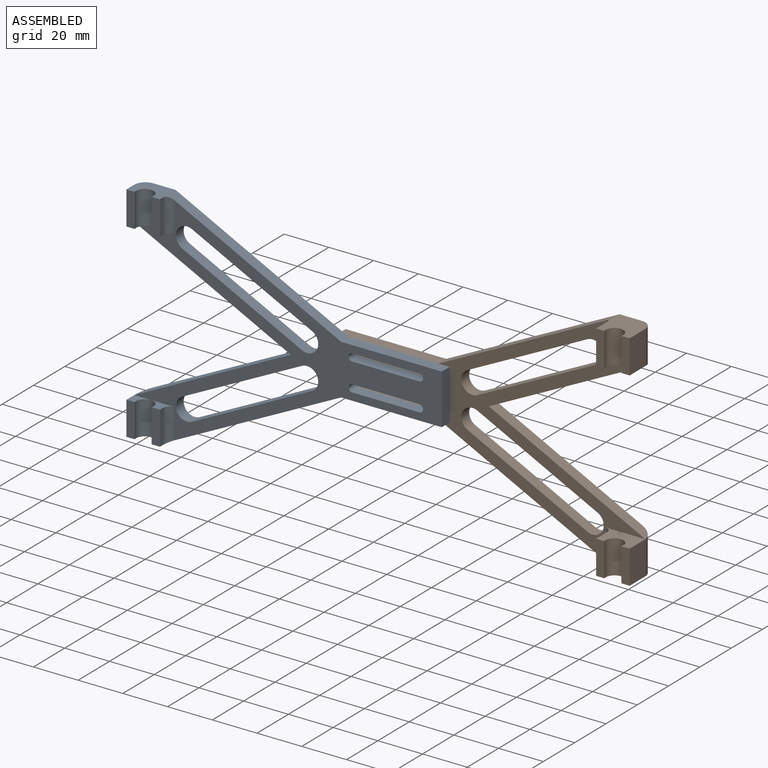
[diagram: assembled view]
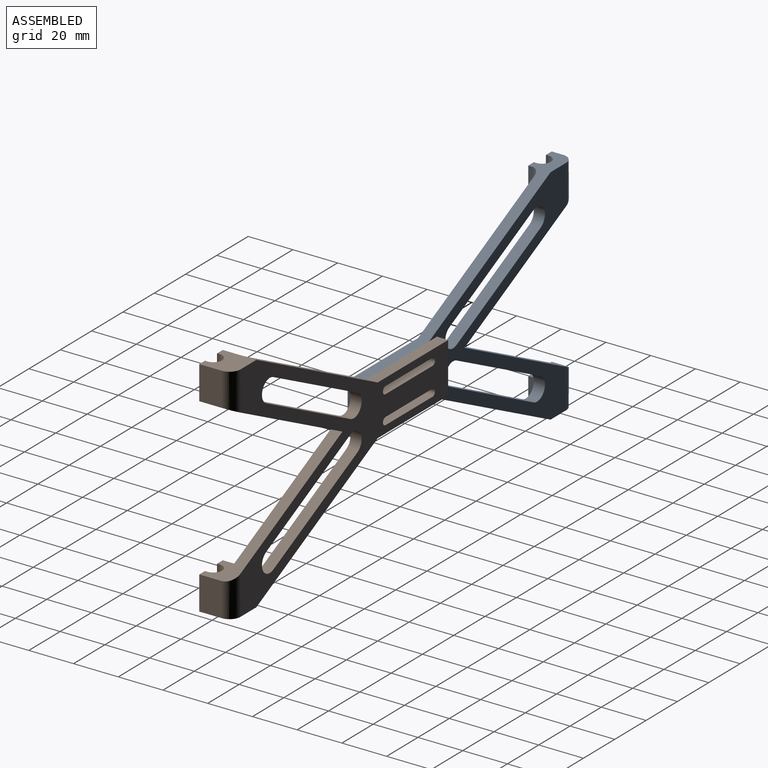
[diagram: assembled view, second angle]
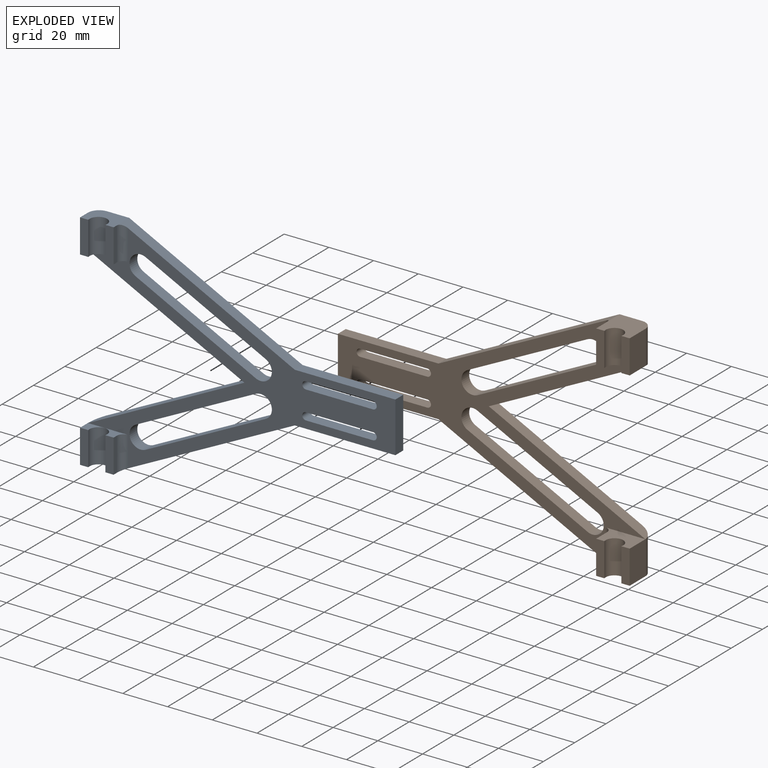
[diagram: exploded view]
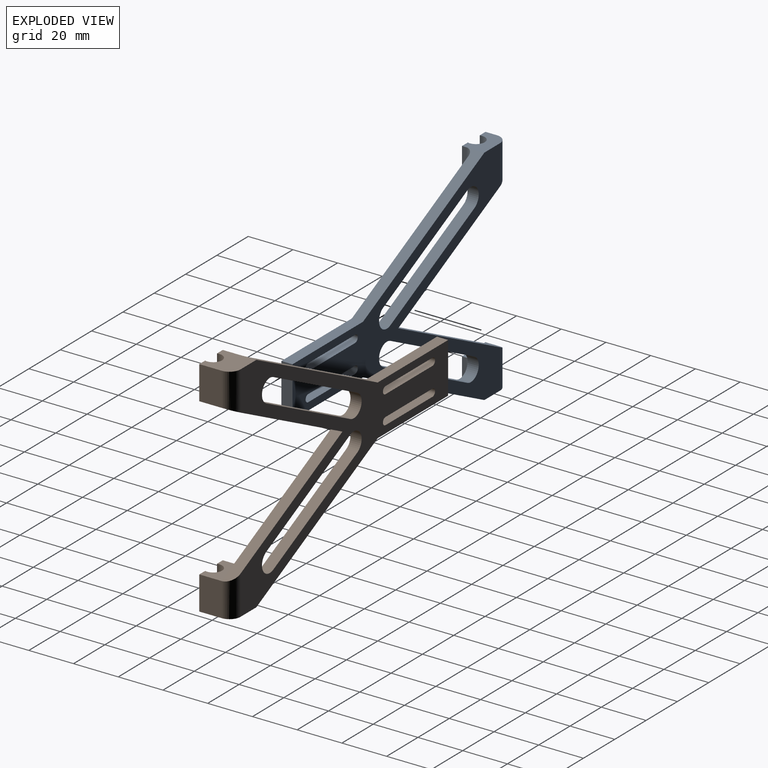
[diagram: exploded view, second angle]
ASSEMBLY  parts=2 mates=2
PART A: 43 faces, bbox 137.5x10x100 mm
  f0: plane 15x10mm, normal (0,0,-1), area 112.7mm2, adj f2,f14,f15,f22,f27,f28,f29,f39
  f1: plane 15x3.7mm, normal (0,-1,0), area 55.6mm2, adj f10,f23,f24,f30
  f2: plane 15x3.7mm, normal (0,-1,0), area 55.6mm2, adj f0,f26,f27,f29
  f3: plane 137.5x97mm, normal (0,-1,0), area 2701.7mm2, adj f4,f5,f6,f7,f8,f9,f12,f13
  f4: plane 30x5mm, normal (0,0,1), area 150mm2, adj f3,f5,f21,f22
  f5: cylinder r=1.65mm len=5mm, axis (0,1,0), area 25.9mm2, adj f3,f4,f6,f22
  f6: plane 30x5mm, normal (0,0,-1), area 150mm2, adj f3,f5,f21,f22
  f7: plane 30x5mm, normal (0,0,1), area 150mm2, adj f3,f8,f19,f22
  f8: cylinder r=1.65mm len=5mm, axis (0,1,0), area 25.9mm2, adj f3,f7,f9,f22
  f9: plane 30x5mm, normal (0,0,-1), area 150mm2, adj f3,f8,f19,f22
  f10: plane 15x10mm, normal (0,0,1), area 112.7mm2, adj f1,f11,f20,f22,f24,f25,f30,f40
  f11: plane 15x5mm, normal (-1,0,0), area 75mm2, adj f10,f23,f25,f40
  f12: plane 70x35mm, normal (-0.45,0,-0.89), area 385.3mm2, adj f3,f13,f22,f40
  f13: plane 70x35mm, normal (-0.45,0,0.89), area 385.3mm2, adj f3,f12,f22,f39
  f14: plane 15x5mm, normal (-1,0,0), area 75mm2, adj f0,f26,f28,f39
  f15: plane 77.5x38.75mm, normal (0.45,0,-0.89), area 435.4mm2, adj f0,f3,f16,f22,f41
  f16: plane 45x5mm, normal (0,0,-1), area 225mm2, adj f3,f15,f17,f22
  f17: plane 22.5x5mm, normal (1,0,0), area 112.5mm2, adj f3,f16,f18,f22
  f18: plane 45x5mm, normal (0,0,1), area 225mm2, adj f3,f17,f20,f22
  f19: cylinder r=1.65mm len=5mm, axis (0,1,0), area 25.9mm2, adj f3,f7,f9,f22
  f20: plane 77.5x38.75mm, normal (0.45,0,0.89), area 435.4mm2, adj f3,f10,f18,f22,f42
  f21: cylinder r=1.65mm len=5mm, axis (0,1,0), area 25.9mm2, adj f3,f4,f6,f22
  f22: plane 132.5x100mm, normal (0,1,0), area 3074.7mm2, adj f0,f4,f5,f6,f7,f8,f9,f10
  f23: plane 18x5mm, normal (0,0,-1), area 45mm2, adj f1,f3,f11,f24,f25,f30,f42
  f24: plane 15x2mm, normal (1,0,0), area 30mm2, adj f1,f10,f23,f42
  f25: plane 15x3.7mm, normal (0,-1,0), area 55.6mm2, adj f10,f11,f23,f30
  f26: plane 18x5mm, normal (0,0,1), area 45mm2, adj f2,f3,f14,f27,f28,f29,f41
  f27: plane 15x2mm, normal (1,0,0), area 30mm2, adj f0,f2,f26,f41
  f28: plane 15x3.7mm, normal (0,-1,0), area 55.6mm2, adj f0,f14,f26,f29
  f29: cylinder r=3.92mm len=15mm, axis (0,0,1), area 215.3mm2, adj f0,f2,f26,f28
  f30: cylinder r=3.92mm len=15mm, axis (0,0,1), area 215.3mm2, adj f1,f10,f23,f25
  f31: cylinder r=5mm len=9.47mm, axis (0,-1,0), area 78.5mm2, adj f3,f22,f32,f33
  f32: plane 53.67x26.83mm, normal (0.45,0,-0.89), area 300mm2, adj f3,f22,f31,f34
  f33: plane 53.67x26.83mm, normal (-0.45,0,0.89), area 300mm2, adj f3,f22,f31,f34
  f34: cylinder r=5mm len=9.47mm, axis (0,-1,0), area 78.5mm2, adj f3,f22,f32,f33
  f35: cylinder r=5mm len=9.47mm, axis (0,-1,0), area 78.5mm2, adj f3,f22,f36,f37
  f36: plane 53.67x26.83mm, normal (-0.45,0,-0.89), area 300mm2, adj f3,f22,f35,f38
  f37: plane 53.67x26.83mm, normal (0.45,0,0.89), area 300mm2, adj f3,f22,f35,f38
  f38: cylinder r=5mm len=9.47mm, axis (0,-1,0), area 78.5mm2, adj f3,f22,f36,f37
  f39: cylinder r=5mm len=17.5mm, axis (0,0,-1), area 124.9mm2, adj f0,f13,f14,f22
  f40: cylinder r=5mm len=17.5mm, axis (0,0,-1), area 124.9mm2, adj f10,f11,f12,f22
  f41: cylinder r=3mm len=15mm, axis (0,0,1), area 68.1mm2, adj f3,f15,f26,f27
  f42: cylinder r=3mm len=15mm, axis (0,0,1), area 68.1mm2, adj f3,f20,f23,f24
PART B: 43 faces, bbox 137.5x15x100 mm
  f0: plane 15x15mm, normal (0,0,-1), area 187.7mm2, adj f2,f14,f15,f22,f27,f28,f29,f39
  f1: plane 15x3.7mm, normal (0,-1,0), area 55.6mm2, adj f10,f23,f24,f30
  f2: plane 15x3.7mm, normal (0,-1,0), area 55.6mm2, adj f0,f26,f27,f29
  f3: plane 137.5x97mm, normal (0,-1,0), area 2701.7mm2, adj f4,f5,f6,f7,f8,f9,f12,f13
  f4: plane 30x5mm, normal (0,0,1), area 150mm2, adj f3,f5,f21,f22
  f5: cylinder r=1.65mm len=5mm, axis (0,1,0), area 25.9mm2, adj f3,f4,f6,f22
  f6: plane 30x5mm, normal (0,0,-1), area 150mm2, adj f3,f5,f21,f22
  f7: plane 30x5mm, normal (0,0,1), area 150mm2, adj f3,f8,f19,f22
  f8: cylinder r=1.65mm len=5mm, axis (0,1,0), area 25.9mm2, adj f3,f7,f9,f22
  f9: plane 30x5mm, normal (0,0,-1), area 150mm2, adj f3,f8,f19,f22
  f10: plane 15x15mm, normal (0,0,1), area 187.7mm2, adj f1,f11,f20,f22,f24,f25,f30,f40
  f11: plane 15x10mm, normal (-1,0,0), area 150mm2, adj f10,f23,f25,f40
  f12: plane 70x35mm, normal (-0.45,0,-0.89), area 385.3mm2, adj f3,f13,f22,f40
  f13: plane 70x35mm, normal (-0.45,0,0.89), area 385.3mm2, adj f3,f12,f22,f39
  f14: plane 15x10mm, normal (-1,0,0), area 150mm2, adj f0,f26,f28,f39
  f15: plane 77.5x38.75mm, normal (0.45,0,-0.89), area 435.4mm2, adj f0,f3,f16,f22,f41
  f16: plane 45x5mm, normal (0,0,-1), area 225mm2, adj f3,f15,f17,f22
  f17: plane 22.5x5mm, normal (1,0,0), area 112.5mm2, adj f3,f16,f18,f22
  f18: plane 45x5mm, normal (0,0,1), area 225mm2, adj f3,f17,f20,f22
  f19: cylinder r=1.65mm len=5mm, axis (0,1,0), area 25.9mm2, adj f3,f7,f9,f22
  f20: plane 77.5x38.75mm, normal (0.45,0,0.89), area 435.4mm2, adj f3,f10,f18,f22,f42
  f21: cylinder r=1.65mm len=5mm, axis (0,1,0), area 25.9mm2, adj f3,f4,f6,f22
  f22: plane 132.5x100mm, normal (0,1,0), area 3074.7mm2, adj f0,f4,f5,f6,f7,f8,f9,f10
  f23: plane 18x10mm, normal (0,0,-1), area 120mm2, adj f1,f3,f11,f24,f25,f30,f42
  f24: plane 15x7mm, normal (1,0,0), area 105mm2, adj f1,f10,f23,f42
  f25: plane 15x3.7mm, normal (0,-1,0), area 55.6mm2, adj f10,f11,f23,f30
  f26: plane 18x10mm, normal (0,0,1), area 120mm2, adj f2,f3,f14,f27,f28,f29,f41
  f27: plane 15x7mm, normal (1,0,0), area 105mm2, adj f0,f2,f26,f41
  f28: plane 15x3.7mm, normal (0,-1,0), area 55.6mm2, adj f0,f14,f26,f29
  f29: cylinder r=3.92mm len=15mm, axis (0,0,1), area 215.3mm2, adj f0,f2,f26,f28
  f30: cylinder r=3.92mm len=15mm, axis (0,0,1), area 215.3mm2, adj f1,f10,f23,f25
  f31: cylinder r=5mm len=9.47mm, axis (0,-1,0), area 78.5mm2, adj f3,f22,f32,f33
  f32: plane 53.67x26.83mm, normal (0.45,0,-0.89), area 300mm2, adj f3,f22,f31,f34
  f33: plane 53.67x26.83mm, normal (-0.45,0,0.89), area 300mm2, adj f3,f22,f31,f34
  f34: cylinder r=5mm len=9.47mm, axis (0,-1,0), area 78.5mm2, adj f3,f22,f32,f33
  f35: cylinder r=5mm len=9.47mm, axis (0,-1,0), area 78.5mm2, adj f3,f22,f36,f37
  f36: plane 53.67x26.83mm, normal (-0.45,0,-0.89), area 300mm2, adj f3,f22,f35,f38
  f37: plane 53.67x26.83mm, normal (0.45,0,0.89), area 300mm2, adj f3,f22,f35,f38
  f38: cylinder r=5mm len=9.47mm, axis (0,-1,0), area 78.5mm2, adj f3,f22,f36,f37
  f39: cylinder r=5mm len=17.5mm, axis (0,0,-1), area 124.9mm2, adj f0,f13,f14,f22
  f40: cylinder r=5mm len=17.5mm, axis (0,0,-1), area 124.9mm2, adj f10,f11,f12,f22
  f41: cylinder r=3mm len=15mm, axis (0,0,1), area 68.1mm2, adj f3,f15,f26,f27
  f42: cylinder r=3mm len=15mm, axis (0,0,1), area 68.1mm2, adj f3,f20,f23,f24
PLACE A t=(-81.94,-153.59,33.4)mm
PLACE B rot(axis=(0,-1,0),180deg) t=(-56.89,-148.59,33.4)mm
MATE planar B.f3 <-> A.f22  axis (0,-1,0) through (-94.39,-153.59,33.4)mm
MATE planar A.f18 <-> B.f16  axis (0,0,1) through (-66.94,-156.09,44.65)mm
